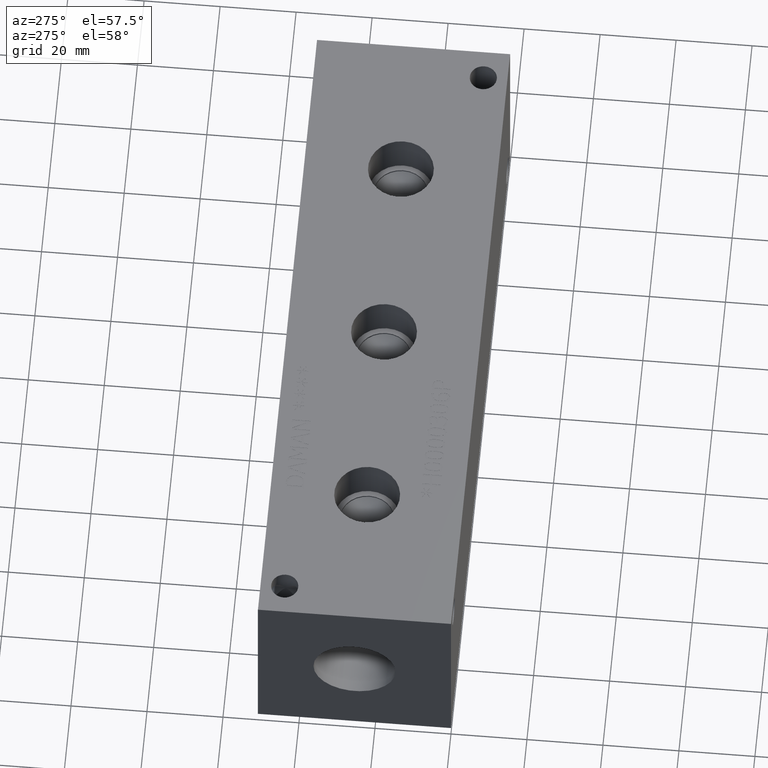
[diagram: clean part render]
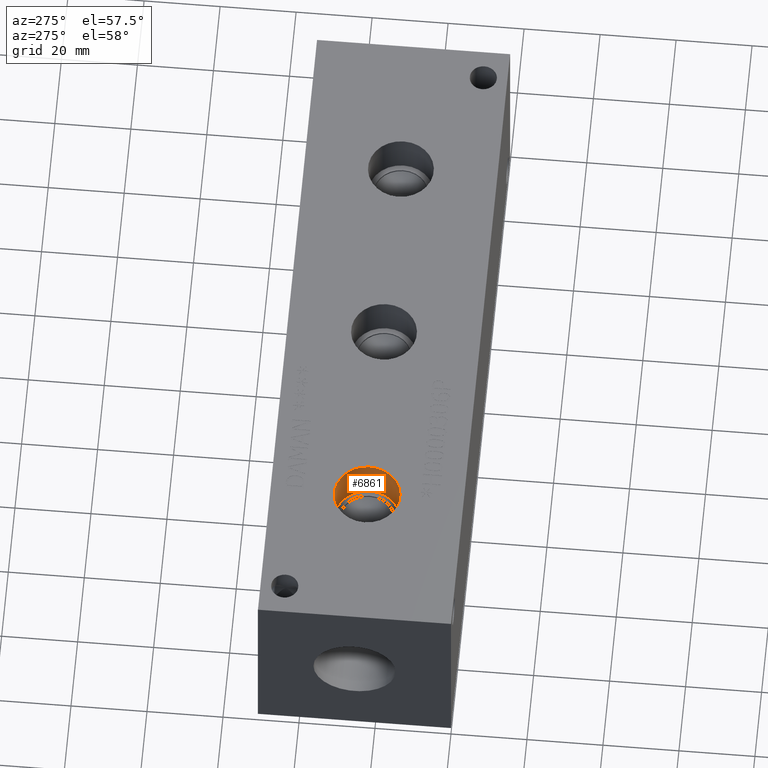
[diagram: same view with one face highlighted and labeled with its STEP entity id]
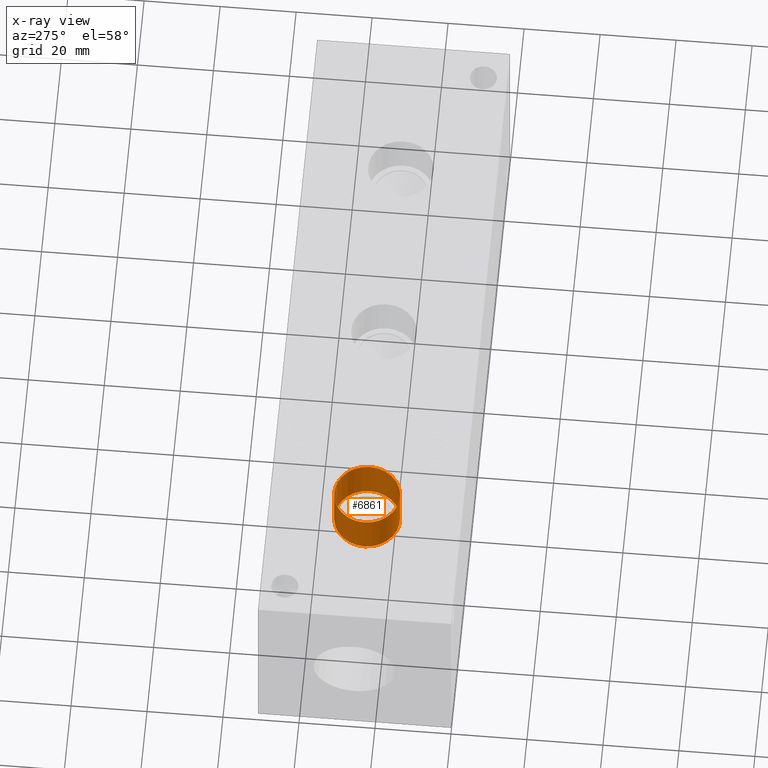
[diagram: x-ray of the same camera — body ghosted, the highlighted face saturated]
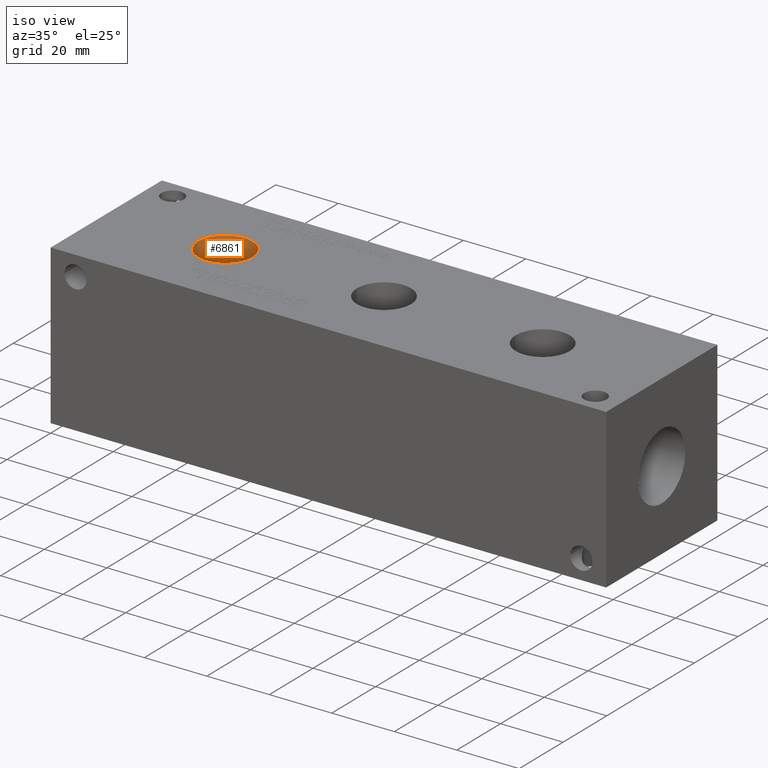
[diagram: same view with one face highlighted and labeled with its STEP entity id]
A machine part, auxiliary view. The second image highlights one B-rep face of the part: STEP entity #6861.
The next image is the same camera in x-ray: the body ghosted, the highlighted face saturated — about 0% of this face is hidden behind the body in this view.
A second angle (iso view) of the same face is appended — the face is thin or edge-on in the first view.
In plain terms, the highlighted cylindrical surface (bore or boss wall) has radius 8.6487 mm, axis along (0, 0, 1).
Its self-contained STEP definition (entity closure, byte-faithful):
#37=CYLINDRICAL_SURFACE('',#7145,8.6487);
#51=CIRCLE('',#6960,8.6487);
#52=CIRCLE('',#6961,8.6487);
#70=CIRCLE('',#7142,8.6487);
#71=CIRCLE('',#7143,8.6487);
#678=FACE_OUTER_BOUND('',#1062,.T.);
#1062=EDGE_LOOP('',(#6014,#6015,#6016,#6017,#6018,#6019));
#1736=LINE('',#11753,#2398);
#2398=VECTOR('',#8331,8.6487);
#3081=VERTEX_POINT('',#11008);
#3082=VERTEX_POINT('',#11009);
#3250=VERTEX_POINT('',#11746);
#3251=VERTEX_POINT('',#11747);
#3869=EDGE_CURVE('',#3081,#3082,#51,.T.);
#3870=EDGE_CURVE('',#3082,#3081,#52,.T.);
#4183=EDGE_CURVE('',#3250,#3251,#70,.T.);
#4184=EDGE_CURVE('',#3251,#3250,#71,.T.);
#4186=EDGE_CURVE('',#3082,#3251,#1736,.T.);
#6014=ORIENTED_EDGE('',*,*,#3869,.F.);
#6015=ORIENTED_EDGE('',*,*,#3870,.F.);
#6016=ORIENTED_EDGE('',*,*,#4186,.T.);
#6017=ORIENTED_EDGE('',*,*,#4183,.F.);
#6018=ORIENTED_EDGE('',*,*,#4184,.F.);
#6019=ORIENTED_EDGE('',*,*,#4186,.F.);
#6861=ADVANCED_FACE('',(#678),#37,.F.);
#6960=AXIS2_PLACEMENT_3D('',#11010,#7684,#7685);
#6961=AXIS2_PLACEMENT_3D('',#11011,#7686,#7687);
#7142=AXIS2_PLACEMENT_3D('',#11748,#8323,#8324);
#7143=AXIS2_PLACEMENT_3D('',#11749,#8325,#8326);
#7145=AXIS2_PLACEMENT_3D('',#11752,#8329,#8330);
#7684=DIRECTION('center_axis',(0.,0.,-1.));
#7685=DIRECTION('ref_axis',(1.,0.,0.));
#7686=DIRECTION('center_axis',(0.,0.,-1.));
#7687=DIRECTION('ref_axis',(1.,0.,0.));
#8323=DIRECTION('center_axis',(0.,0.,1.));
#8324=DIRECTION('ref_axis',(1.,0.,0.));
#8325=DIRECTION('center_axis',(0.,0.,1.));
#8326=DIRECTION('ref_axis',(1.,0.,0.));
#8329=DIRECTION('center_axis',(0.,0.,1.));
#8330=DIRECTION('ref_axis',(1.,0.,0.));
#8331=DIRECTION('',(0.,0.,-1.));
#11008=CARTESIAN_POINT('',(46.7487,25.4,50.8));
#11009=CARTESIAN_POINT('',(29.4513,25.4,50.8));
#11010=CARTESIAN_POINT('Origin',(38.1,25.4,50.8));
#11011=CARTESIAN_POINT('Origin',(38.1,25.4,50.8));
#11746=CARTESIAN_POINT('',(46.7487,25.4,39.0652));
#11747=CARTESIAN_POINT('',(29.4513,25.4,39.0652));
#11748=CARTESIAN_POINT('Origin',(38.1,25.4,39.0652));
#11749=CARTESIAN_POINT('Origin',(38.1,25.4,39.0652));
#11752=CARTESIAN_POINT('Origin',(38.1,25.4,44.9326));
#11753=CARTESIAN_POINT('',(29.4513,25.4,44.9326));